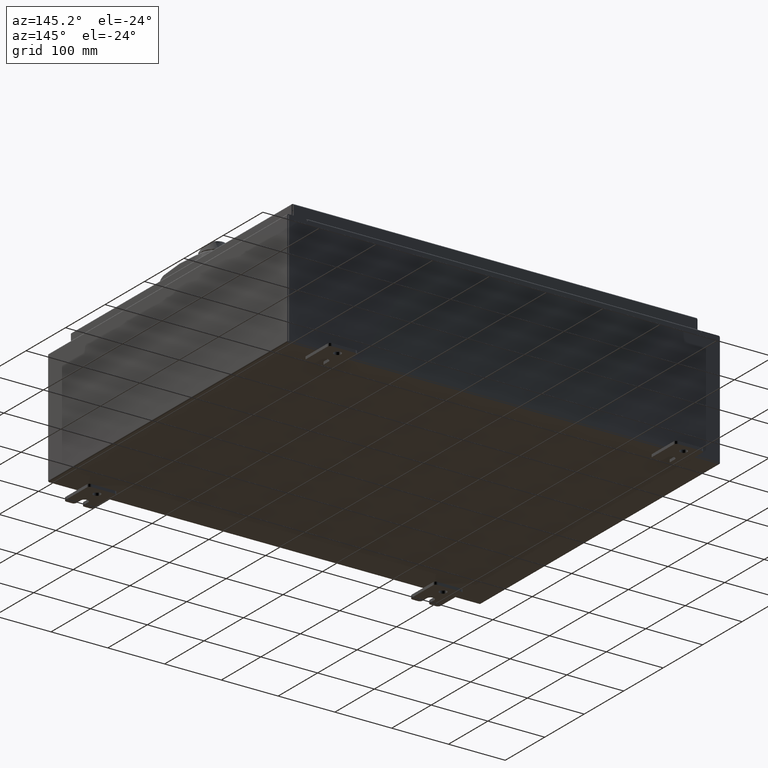
[diagram: clean part render]
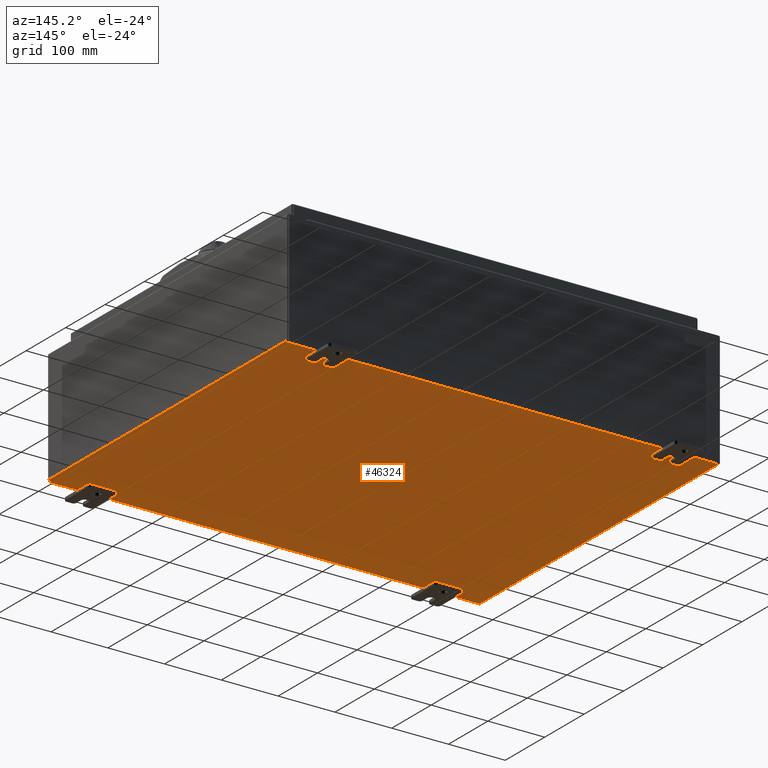
[diagram: same view with one face highlighted and labeled with its STEP entity id]
A machine part, auxiliary view. The second image highlights one B-rep face of the part: STEP entity #46324.
In plain terms, the highlighted planar face has unit normal (0, 0, -1).
Its self-contained STEP definition (entity closure, byte-faithful):
#2880 = CARTESIAN_POINT ( 'NONE',  ( 14.91230000000000000, 11.92529999999999600, -0.07469999999999994700 ) ) ;
#3183 = CARTESIAN_POINT ( 'NONE',  ( -14.91230000000000000, -11.92530000000000400, -0.07469999999999994700 ) ) ;
#4159 = VERTEX_POINT ( 'NONE', #6815 ) ;
#4883 = DIRECTION ( 'NONE',  ( 0.0000000000000000000, 0.0000000000000000000, -1.000000000000000000 ) ) ;
#6083 = LINE ( 'NONE', #29054, #26424 ) ;
#6815 = CARTESIAN_POINT ( 'NONE',  ( -14.91230000000000000, -11.92530000000000000, -0.07469999999999994700 ) ) ;
#9003 = FACE_OUTER_BOUND ( 'NONE', #88876, .T. ) ;
#11903 = DIRECTION ( 'NONE',  ( -0.0000000000000000000, 1.000000000000000000, -0.0000000000000000000 ) ) ;
#22646 = CARTESIAN_POINT ( 'NONE',  ( 14.91230000000000000, -11.92530000000000400, -0.07470000000000000300 ) ) ;
#26424 = VECTOR ( 'NONE', #80901, 39.37007874015748100 ) ;
#29054 = CARTESIAN_POINT ( 'NONE',  ( -15.00000000000000000, 11.92529999999999800, -0.07470000000000000300 ) ) ;
#33466 = AXIS2_PLACEMENT_3D ( 'NONE', #56772, #4883, #65493 ) ;
#34735 = DIRECTION ( 'NONE',  ( 1.000000000000000000, 0.0000000000000000000, 0.0000000000000000000 ) ) ;
#36177 = EDGE_CURVE ( 'NONE', #68010, #68065, #6083, .T. ) ;
#38128 = CARTESIAN_POINT ( 'NONE',  ( 14.91230000000000000, 11.92529999999999800, -0.07469999999999994700 ) ) ;
#39477 = EDGE_CURVE ( 'NONE', #4159, #68065, #57150, .T. ) ;
#46324 = ADVANCED_FACE ( 'NONE', ( #9003 ), #73863, .T. ) ;
#49534 = LINE ( 'NONE', #94639, #54935 ) ;
#54935 = VECTOR ( 'NONE', #34735, 39.37007874015748100 ) ;
#55510 = CARTESIAN_POINT ( 'NONE',  ( -14.91230000000000000, 11.92529999999999800, -0.07470000000000000300 ) ) ;
#56772 = CARTESIAN_POINT ( 'NONE',  ( 0.0000000000000000000, 0.0000000000000000000, -0.07470000000000000300 ) ) ;
#57150 = LINE ( 'NONE', #3183, #77533 ) ;
#65493 = DIRECTION ( 'NONE',  ( -1.000000000000000000, 0.0000000000000000000, -0.0000000000000000000 ) ) ;
#68010 = VERTEX_POINT ( 'NONE', #2880 ) ;
#68065 = VERTEX_POINT ( 'NONE', #55510 ) ;
#73034 = DIRECTION ( 'NONE',  ( -0.0000000000000000000, -1.000000000000000000, -0.0000000000000000000 ) ) ;
#73863 = PLANE ( 'NONE',  #33466 ) ;
#77533 = VECTOR ( 'NONE', #11903, 39.37007874015748100 ) ;
#80637 = EDGE_CURVE ( 'NONE', #68010, #109753, #86498, .T. ) ;
#80901 = DIRECTION ( 'NONE',  ( -1.000000000000000000, -0.0000000000000000000, -0.0000000000000000000 ) ) ;
#83507 = EDGE_CURVE ( 'NONE', #4159, #109753, #49534, .T. ) ;
#84229 = ORIENTED_EDGE ( 'NONE', *, *, #83507, .F. ) ;
#86498 = LINE ( 'NONE', #38128, #106804 ) ;
#86993 = ORIENTED_EDGE ( 'NONE', *, *, #80637, .T. ) ;
#88876 = EDGE_LOOP ( 'NONE', ( #84229, #111517, #100303, #86993 ) ) ;
#94639 = CARTESIAN_POINT ( 'NONE',  ( -15.00000000000000000, -11.92530000000000400, -0.07470000000000000300 ) ) ;
#100303 = ORIENTED_EDGE ( 'NONE', *, *, #36177, .F. ) ;
#106804 = VECTOR ( 'NONE', #73034, 39.37007874015748100 ) ;
#109753 = VERTEX_POINT ( 'NONE', #22646 ) ;
#111517 = ORIENTED_EDGE ( 'NONE', *, *, #39477, .T. ) ;